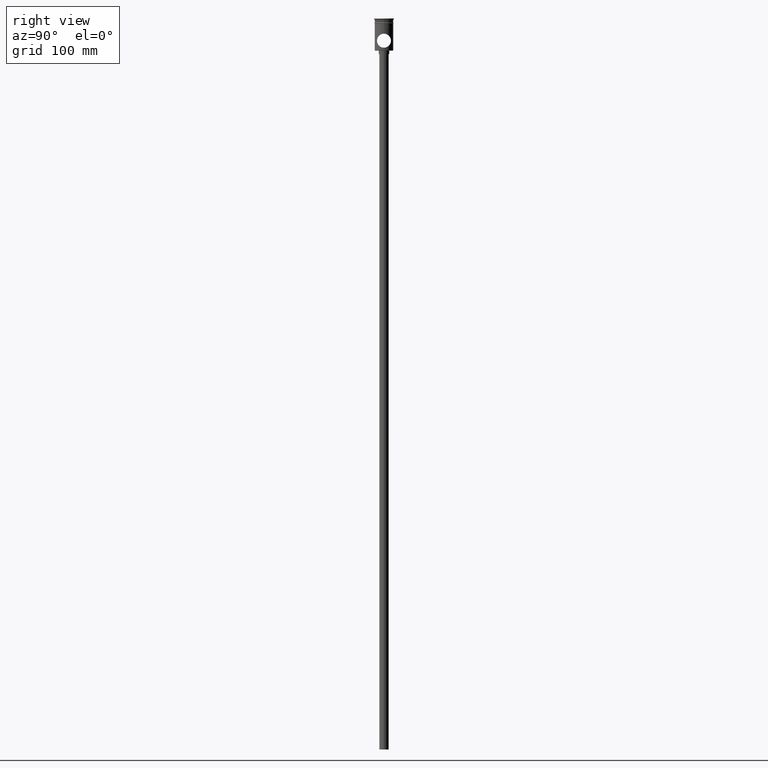
[diagram: clean part render]
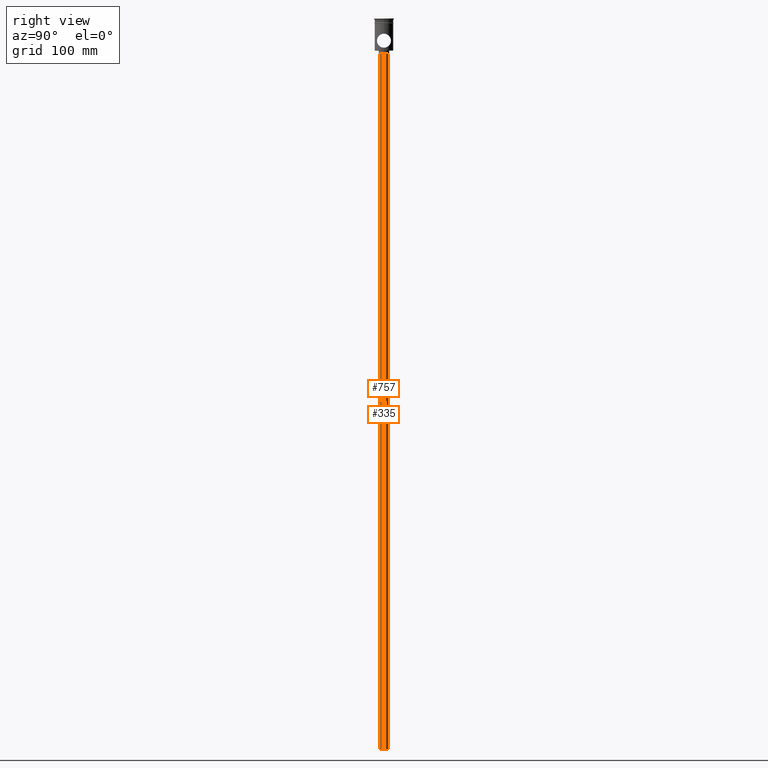
[diagram: same view with one multi-face feature highlighted, each face labeled with its STEP entity id]
A machine part, right view. The highlighted faces form ONE feature: a constant-radius fillet chain: 2 tangent blend faces with common blend radius 4 mm. The faces share edges in the B-rep.
Their STEP definitions:
[1] entity #335 (Cylinder):
#28 = CARTESIAN_POINT ( 'NONE',  ( 0.000000000000000000, 0.000000000000000000, -627.5000000000000000 ) ) ;
#44 = EDGE_CURVE ( 'NONE', #1338, #1154, #463, .T. ) ;
#75 = CARTESIAN_POINT ( 'NONE',  ( 4.000000000000000000, 0.000000000000000000, -627.5000000000000000 ) ) ;
#171 = EDGE_CURVE ( 'NONE', #935, #992, #1133, .T. ) ;
#179 = ORIENTED_EDGE ( 'NONE', *, *, #171, .F. ) ;
#186 = AXIS2_PLACEMENT_3D ( 'NONE', #664, #1135, #1148 ) ;
#223 = CYLINDRICAL_SURFACE ( 'NONE', #649, 4.000000000000000000 ) ;
#335 = ADVANCED_FACE ( 'NONE', ( #1488 ), #223, .T. ) ;
#396 = CIRCLE ( 'NONE', #186, 4.000000000000000000 ) ;
#401 = DIRECTION ( 'NONE',  ( 0.000000000000000000, 0.000000000000000000, -1.000000000000000000 ) ) ;
#463 = LINE ( 'NONE', #810, #630 ) ;
#490 = AXIS2_PLACEMENT_3D ( 'NONE', #28, #401, #852 ) ;
#558 = DIRECTION ( 'NONE',  ( -0.000000000000000000, -0.000000000000000000, 1.000000000000000000 ) ) ;
#604 = ORIENTED_EDGE ( 'NONE', *, *, #799, .F. ) ;
#630 = VECTOR ( 'NONE', #962, 1000.000000000000000 ) ;
#649 = AXIS2_PLACEMENT_3D ( 'NONE', #937, #1166, #1386 ) ;
#664 = CARTESIAN_POINT ( 'NONE',  ( 0.000000000000000000, 0.000000000000000000, -30.50000000000000000 ) ) ;
#687 = CARTESIAN_POINT ( 'NONE',  ( -4.000000000000000000, 4.898587196589412829E-16, -627.5000000000000000 ) ) ;
#765 = CARTESIAN_POINT ( 'NONE',  ( 4.000000000000000000, 0.000000000000000000, -30.50000000000000000 ) ) ;
#779 = ORIENTED_EDGE ( 'NONE', *, *, #44, .T. ) ;
#799 = EDGE_CURVE ( 'NONE', #1338, #935, #1168, .T. ) ;
#810 = CARTESIAN_POINT ( 'NONE',  ( -4.000000000000000000, 4.898587196589412829E-16, -627.5000000000000000 ) ) ;
#852 = DIRECTION ( 'NONE',  ( -1.000000000000000000, 0.000000000000000000, 0.000000000000000000 ) ) ;
#871 = EDGE_LOOP ( 'NONE', ( #604, #779, #964, #179 ) ) ;
#935 = VERTEX_POINT ( 'NONE', #1087 ) ;
#937 = CARTESIAN_POINT ( 'NONE',  ( 0.000000000000000000, 0.000000000000000000, -627.5000000000000000 ) ) ;
#962 = DIRECTION ( 'NONE',  ( -0.000000000000000000, -0.000000000000000000, 1.000000000000000000 ) ) ;
#964 = ORIENTED_EDGE ( 'NONE', *, *, #1297, .T. ) ;
#992 = VERTEX_POINT ( 'NONE', #765 ) ;
#1087 = CARTESIAN_POINT ( 'NONE',  ( 4.000000000000000000, 0.000000000000000000, -627.5000000000000000 ) ) ;
#1133 = LINE ( 'NONE', #75, #1426 ) ;
#1135 = DIRECTION ( 'NONE',  ( 0.000000000000000000, 0.000000000000000000, -1.000000000000000000 ) ) ;
#1148 = DIRECTION ( 'NONE',  ( -1.000000000000000000, 0.000000000000000000, 0.000000000000000000 ) ) ;
#1154 = VERTEX_POINT ( 'NONE', #1306 ) ;
#1166 = DIRECTION ( 'NONE',  ( -0.000000000000000000, -0.000000000000000000, 1.000000000000000000 ) ) ;
#1168 = CIRCLE ( 'NONE', #490, 4.000000000000000000 ) ;
#1297 = EDGE_CURVE ( 'NONE', #1154, #992, #396, .T. ) ;
#1306 = CARTESIAN_POINT ( 'NONE',  ( -4.000000000000000000, 4.898587196589412829E-16, -30.50000000000000000 ) ) ;
#1338 = VERTEX_POINT ( 'NONE', #687 ) ;
#1386 = DIRECTION ( 'NONE',  ( 1.000000000000000000, 0.000000000000000000, 0.000000000000000000 ) ) ;
#1426 = VECTOR ( 'NONE', #558, 1000.000000000000000 ) ;
#1488 = FACE_OUTER_BOUND ( 'NONE', #871, .T. ) ;
[2] entity #757 (Cylinder):
#44 = EDGE_CURVE ( 'NONE', #1338, #1154, #463, .T. ) ;
#75 = CARTESIAN_POINT ( 'NONE',  ( 4.000000000000000000, 0.000000000000000000, -627.5000000000000000 ) ) ;
#171 = EDGE_CURVE ( 'NONE', #935, #992, #1133, .T. ) ;
#224 = ORIENTED_EDGE ( 'NONE', *, *, #44, .F. ) ;
#410 = CYLINDRICAL_SURFACE ( 'NONE', #749, 4.000000000000000000 ) ;
#463 = LINE ( 'NONE', #810, #630 ) ;
#558 = DIRECTION ( 'NONE',  ( -0.000000000000000000, -0.000000000000000000, 1.000000000000000000 ) ) ;
#630 = VECTOR ( 'NONE', #962, 1000.000000000000000 ) ;
#687 = CARTESIAN_POINT ( 'NONE',  ( -4.000000000000000000, 4.898587196589412829E-16, -627.5000000000000000 ) ) ;
#749 = AXIS2_PLACEMENT_3D ( 'NONE', #1105, #988, #1337 ) ;
#757 = ADVANCED_FACE ( 'NONE', ( #1424 ), #410, .T. ) ;
#759 = ORIENTED_EDGE ( 'NONE', *, *, #1277, .T. ) ;
#765 = CARTESIAN_POINT ( 'NONE',  ( 4.000000000000000000, 0.000000000000000000, -30.50000000000000000 ) ) ;
#802 = AXIS2_PLACEMENT_3D ( 'NONE', #944, #1394, #1195 ) ;
#810 = CARTESIAN_POINT ( 'NONE',  ( -4.000000000000000000, 4.898587196589412829E-16, -627.5000000000000000 ) ) ;
#918 = DIRECTION ( 'NONE',  ( -1.000000000000000000, 0.000000000000000000, 0.000000000000000000 ) ) ;
#935 = VERTEX_POINT ( 'NONE', #1087 ) ;
#944 = CARTESIAN_POINT ( 'NONE',  ( 0.000000000000000000, 0.000000000000000000, -627.5000000000000000 ) ) ;
#962 = DIRECTION ( 'NONE',  ( -0.000000000000000000, -0.000000000000000000, 1.000000000000000000 ) ) ;
#988 = DIRECTION ( 'NONE',  ( -0.000000000000000000, -0.000000000000000000, 1.000000000000000000 ) ) ;
#992 = VERTEX_POINT ( 'NONE', #765 ) ;
#1016 = DIRECTION ( 'NONE',  ( 0.000000000000000000, 0.000000000000000000, -1.000000000000000000 ) ) ;
#1087 = CARTESIAN_POINT ( 'NONE',  ( 4.000000000000000000, 0.000000000000000000, -627.5000000000000000 ) ) ;
#1105 = CARTESIAN_POINT ( 'NONE',  ( 0.000000000000000000, 0.000000000000000000, -627.5000000000000000 ) ) ;
#1116 = CIRCLE ( 'NONE', #1146, 4.000000000000000000 ) ;
#1133 = LINE ( 'NONE', #75, #1426 ) ;
#1146 = AXIS2_PLACEMENT_3D ( 'NONE', #1489, #1016, #918 ) ;
#1154 = VERTEX_POINT ( 'NONE', #1306 ) ;
#1195 = DIRECTION ( 'NONE',  ( -1.000000000000000000, 0.000000000000000000, 0.000000000000000000 ) ) ;
#1231 = ORIENTED_EDGE ( 'NONE', *, *, #1477, .F. ) ;
#1277 = EDGE_CURVE ( 'NONE', #992, #1154, #1116, .T. ) ;
#1300 = EDGE_LOOP ( 'NONE', ( #224, #1231, #1347, #759 ) ) ;
#1306 = CARTESIAN_POINT ( 'NONE',  ( -4.000000000000000000, 4.898587196589412829E-16, -30.50000000000000000 ) ) ;
#1337 = DIRECTION ( 'NONE',  ( 1.000000000000000000, 0.000000000000000000, 0.000000000000000000 ) ) ;
#1338 = VERTEX_POINT ( 'NONE', #687 ) ;
#1347 = ORIENTED_EDGE ( 'NONE', *, *, #171, .T. ) ;
#1380 = CIRCLE ( 'NONE', #802, 4.000000000000000000 ) ;
#1394 = DIRECTION ( 'NONE',  ( 0.000000000000000000, 0.000000000000000000, -1.000000000000000000 ) ) ;
#1424 = FACE_OUTER_BOUND ( 'NONE', #1300, .T. ) ;
#1426 = VECTOR ( 'NONE', #558, 1000.000000000000000 ) ;
#1477 = EDGE_CURVE ( 'NONE', #935, #1338, #1380, .T. ) ;
#1489 = CARTESIAN_POINT ( 'NONE',  ( 0.000000000000000000, 0.000000000000000000, -30.50000000000000000 ) ) ;